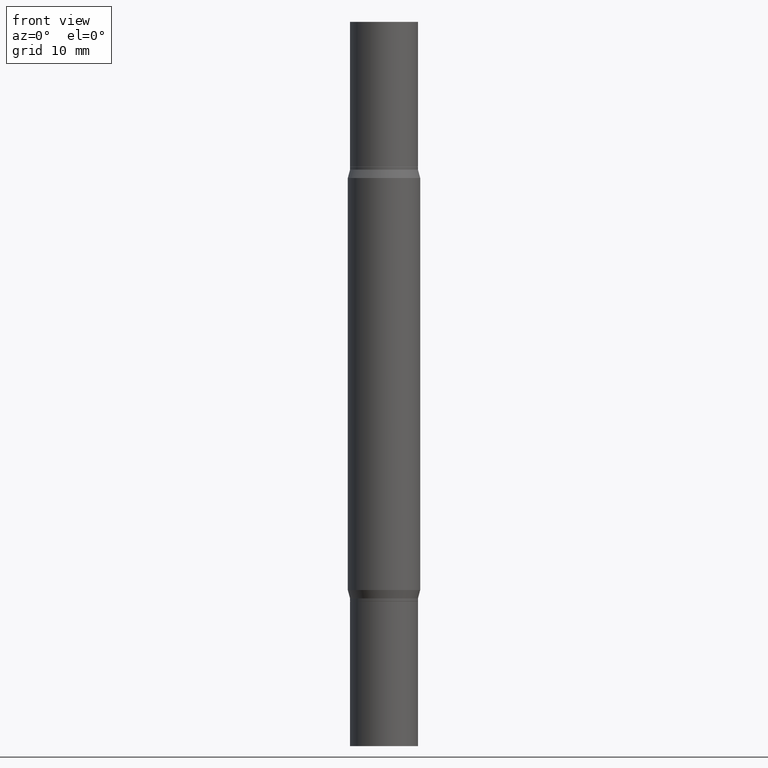
[diagram: clean part render]
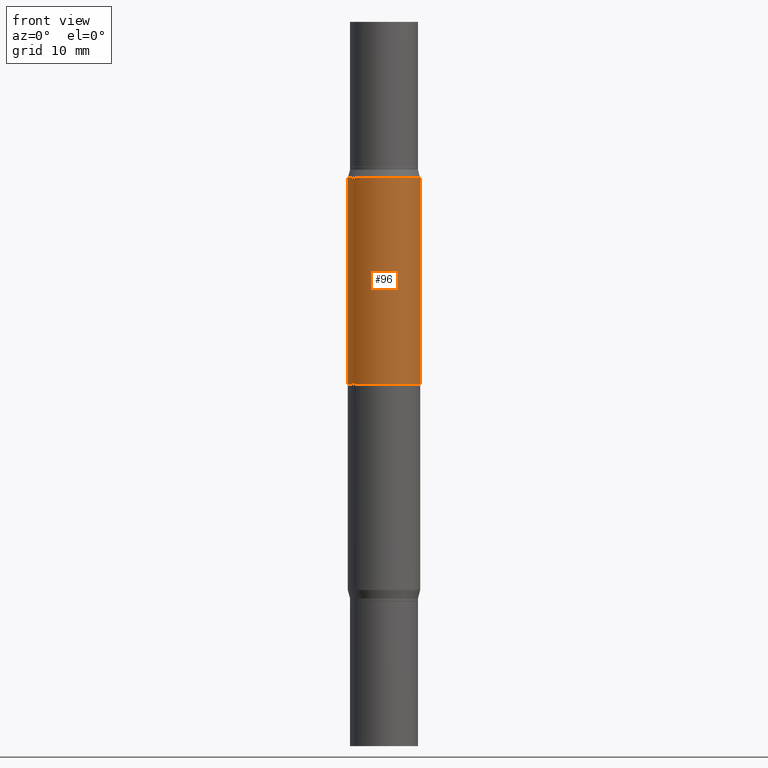
[diagram: same view with one face highlighted and labeled with its STEP entity id]
A machine part, front view. The second image highlights one B-rep face of the part: STEP entity #96.
In plain terms, the highlighted cylindrical surface (edge-blend (fillet) strip) has radius 3.175 mm, axis along (-0, -0, -1).
Its self-contained STEP definition (entity closure, byte-faithful):
#25 = CARTESIAN_POINT ( 'NONE',  ( 0.1250000000000000000, -2.754932671384765144E-15, -0.5391099962990381078 ) ) ;
#29 = DIRECTION ( 'NONE',  ( 0.000000000000000000, 1.000000000000000000, -4.370956789862821150E-15 ) ) ;
#36 = CARTESIAN_POINT ( 'NONE',  ( 0.1250000000000000000, -9.601978376966118441E-15, -2.499999999999999556 ) ) ;
#41 = ORIENTED_EDGE ( 'NONE', *, *, #103, .F. ) ;
#56 = VERTEX_POINT ( 'NONE', #25 ) ;
#66 = DIRECTION ( 'NONE',  ( -2.445468806185136877E-29, -3.491805094961123683E-15, -1.000000000000000000 ) ) ;
#74 = VECTOR ( 'NONE', #66, 39.37007874015748143 ) ;
#92 = EDGE_LOOP ( 'NONE', ( #490, #639, #41, #290 ) ) ;
#96 = ADVANCED_FACE ( 'NONE', ( #337 ), #344, .T. ) ;
#103 = EDGE_CURVE ( 'NONE', #899, #658, #348, .T. ) ;
#130 = CARTESIAN_POINT ( 'NONE',  ( -0.1250000000000000000, -7.871545792533893657E-15, -2.499999999999999556 ) ) ;
#166 = CARTESIAN_POINT ( 'NONE',  ( -0.1250000000000000000, -2.265644755392513326E-15, -1.249999999999999778 ) ) ;
#248 = EDGE_CURVE ( 'NONE', #412, #56, #418, .T. ) ;
#252 = CARTESIAN_POINT ( 'NONE',  ( 0.000000000000000000, -8.729108042255335103E-15, -2.499999999999999556 ) ) ;
#255 = DIRECTION ( 'NONE',  ( -0.000000000000000000, -3.491643216902134830E-15, -1.000000000000000000 ) ) ;
#290 = ORIENTED_EDGE ( 'NONE', *, *, #784, .F. ) ;
#337 = FACE_OUTER_BOUND ( 'NONE', #92, .T. ) ;
#344 = CYLINDRICAL_SURFACE ( 'NONE', #396, 0.1250000000000000000 ) ;
#348 = CIRCLE ( 'NONE', #473, 0.1250000000000000000 ) ;
#355 = CARTESIAN_POINT ( 'NONE',  ( 0.1250000000000000000, -3.996077339824737716E-15, -1.249999999999999778 ) ) ;
#364 = CARTESIAN_POINT ( 'NONE',  ( 4.795295336410958635E-29, -1.882062336673981410E-15, -0.5391099962990381078 ) ) ;
#396 = AXIS2_PLACEMENT_3D ( 'NONE', #252, #634, #937 ) ;
#412 = VERTEX_POINT ( 'NONE', #619 ) ;
#418 = CIRCLE ( 'NONE', #508, 0.1250000000000000000 ) ;
#473 = AXIS2_PLACEMENT_3D ( 'NONE', #929, #255, #29 ) ;
#490 = ORIENTED_EDGE ( 'NONE', *, *, #248, .F. ) ;
#508 = AXIS2_PLACEMENT_3D ( 'NONE', #364, #520, #948 ) ;
#511 = DIRECTION ( 'NONE',  ( -2.445468806185136877E-29, -3.491805094961123683E-15, -1.000000000000000000 ) ) ;
#520 = DIRECTION ( 'NONE',  ( 2.445468806185136597E-29, 3.491805094961124077E-15, 1.000000000000000000 ) ) ;
#528 = LINE ( 'NONE', #130, #74 ) ;
#570 = VECTOR ( 'NONE', #511, 39.37007874015748143 ) ;
#573 = LINE ( 'NONE', #36, #570 ) ;
#619 = CARTESIAN_POINT ( 'NONE',  ( -0.1250000000000000000, -1.024500086952540162E-15, -0.5391099962990381078 ) ) ;
#634 = DIRECTION ( 'NONE',  ( -2.445468806185136597E-29, -3.491805094961124077E-15, -1.000000000000000000 ) ) ;
#639 = ORIENTED_EDGE ( 'NONE', *, *, #969, .T. ) ;
#658 = VERTEX_POINT ( 'NONE', #166 ) ;
#784 = EDGE_CURVE ( 'NONE', #56, #899, #573, .T. ) ;
#899 = VERTEX_POINT ( 'NONE', #355 ) ;
#929 = CARTESIAN_POINT ( 'NONE',  ( 3.056836007731420185E-29, -4.364351673553931682E-15, -1.249999999999999778 ) ) ;
#937 = DIRECTION ( 'NONE',  ( 1.000000000000000000, -6.982962677686262766E-15, 0.000000000000000000 ) ) ;
#948 = DIRECTION ( 'NONE',  ( 1.000000000000000000, -6.982962677686266711E-15, 0.000000000000000000 ) ) ;
#969 = EDGE_CURVE ( 'NONE', #412, #658, #528, .T. ) ;